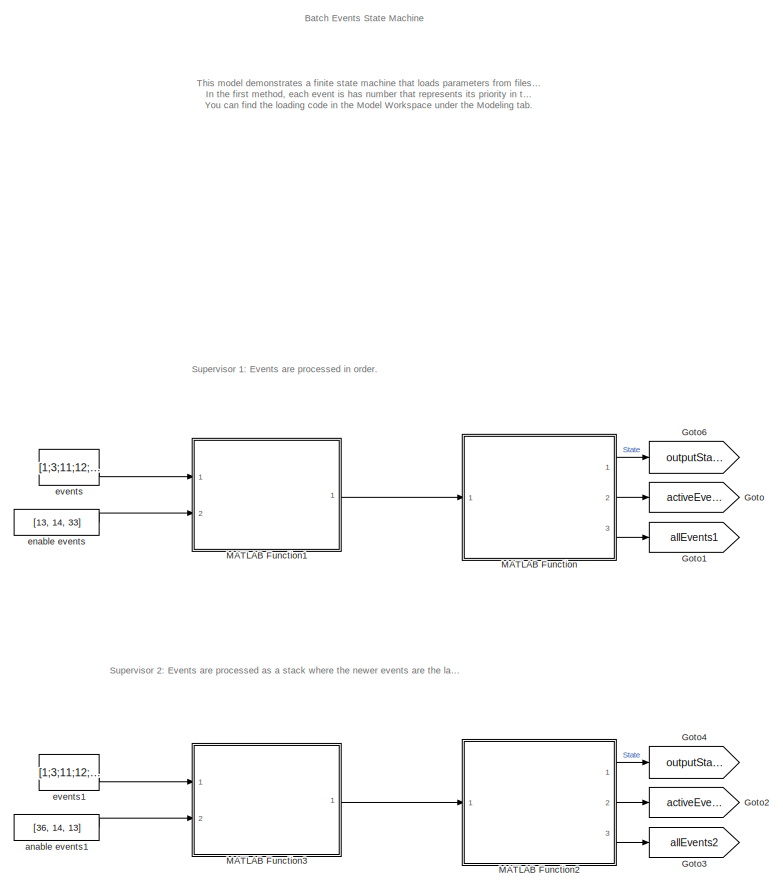
[diagram: root canvas - part 1/2, left side, full height]
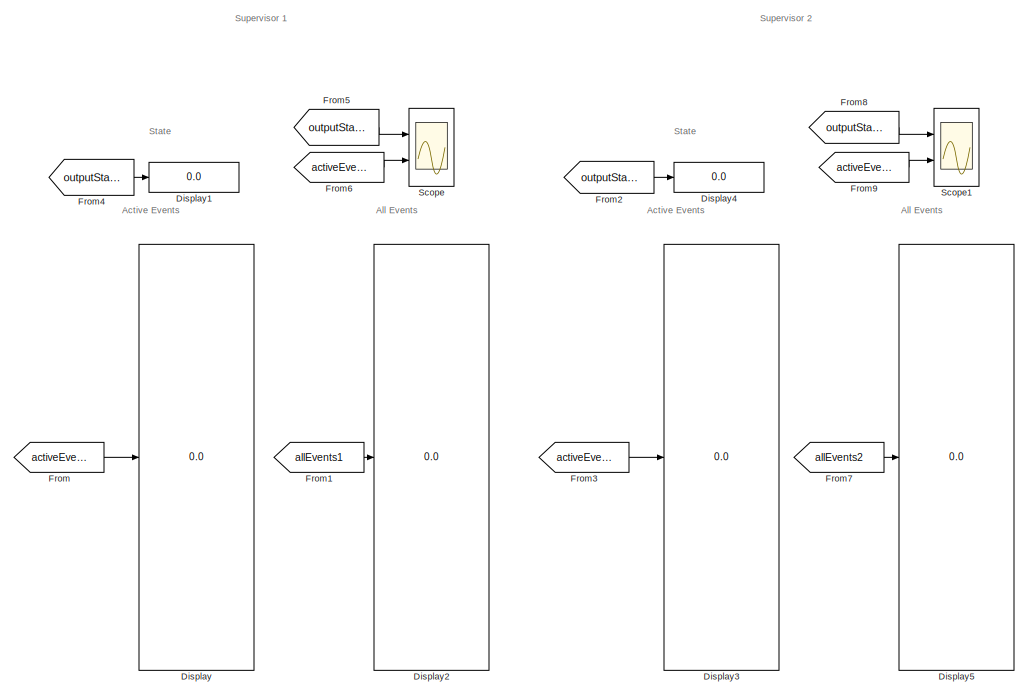
[diagram: root canvas - part 2/2, bottom right region]
MODEL slx_4e27941a263d
KIND model
CONFIG AbsTol = auto
CONFIG EnableMultiTasking = off
CONFIG FixedStep = auto
CONFIG MaxStep = auto
CONFIG MinStep = auto
CONFIG RelTol = 1e-3
CONFIG SampleTimeConstraint = Unconstrained
CONFIG SolverName = VariableStepAuto
CONFIG StartTime = 0.0
CONFIG StopTime = inf
WORKSPACE source: MATLAB code (in-file)
WORKSPACE code: addpath model
WORKSPACE code: addpath utils
WORKSPACE utils = StateMachineUtils
WORKSPACE utils = utils.loadEventsInAds('resources/tct/ALLEVENT.ADS')
WORKSPACE utils = utils.loadDisabledEventsInPdt('resources/tct/supervisor1/DATA_SIMSUP1_MG1.PDT')
WORKSPACE utils = utils.loadTransitionsInAds('resources/tct/supervisor1/SIMSUP1_MG1.ADS')
WORKSPACE encodedStates = StateEncoder.encode(utils.statesArray)
WORKSPACE transitions = utils.transitions
WORKSPACE allEvents = utils.eventsArray
BLOCK [Display] Display
  Decimation = 1
  Ports = [1]
BLOCK [Display] Display1
  Decimation = 1
  Ports = [1]
BLOCK [Display] Display2
  Decimation = 1
  Ports = [1]
BLOCK [Display] Display3
  Decimation = 1
  Ports = [1]
BLOCK [Display] Display4
  Decimation = 1
  Ports = [1]
BLOCK [Display] Display5
  Decimation = 1
  Ports = [1]
BLOCK [From] From
  GotoTag = activeEvents1
BLOCK [From] From1
  GotoTag = allEvents1
BLOCK [From] From2
  GotoTag = outputState2
BLOCK [From] From3
  GotoTag = activeEvents2
BLOCK [From] From4
  GotoTag = outputState1
BLOCK [From] From5
  GotoTag = outputState1
BLOCK [From] From6
  GotoTag = activeEvents1
BLOCK [From] From7
  GotoTag = allEvents2
BLOCK [From] From8
  GotoTag = outputState2
BLOCK [From] From9
  GotoTag = activeEvents2
BLOCK [Goto] Goto
  GotoTag = activeEvents1
BLOCK [Goto] Goto1
  GotoTag = allEvents1
BLOCK [Goto] Goto2
  GotoTag = activeEvents2
BLOCK [Goto] Goto3
  GotoTag = allEvents2
BLOCK [Goto] Goto4
  GotoTag = outputState2
BLOCK [Goto] Goto6
  GotoTag = outputState1
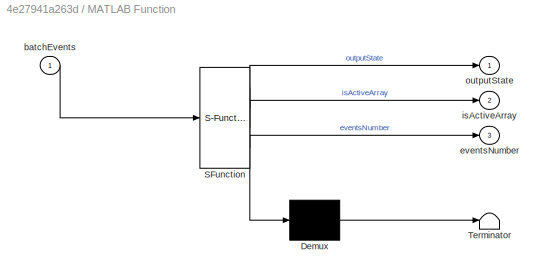
BLOCK [SubSystem] MATLAB Function
  ErrorFcn = Stateflow.Translate.translate
  PermitHierarchicalResolution = ExplicitOnly
  Ports = [1, 3]
  RequestExecContextInheritance = off
  SFBlockType = MATLAB Function
  TreatAsAtomicUnit = on
BLOCK [Demux] MATLAB Function/ Demux 
  Outputs = 1
  Ports = [1, 1]
BLOCK [S-Function] MATLAB Function/ SFunction 
  EnableBusSupport = on
  FunctionName = sf_sfun
  Parameters = allEvents,encodedStates,transitions
  PortCounts = [1 4]
  Ports = [1, 4]
  SFcnIsStateOwnerBlock = off
  SFunctionDeploymentMode = off
  Tag = Stateflow S-Function 2
BLOCK [Terminator] MATLAB Function/ Terminator 
BLOCK [Inport] MATLAB Function/batchEvents
BLOCK [Outport] MATLAB Function/eventsNumber
  Port = 3
BLOCK [Outport] MATLAB Function/isActiveArray
  Port = 2
BLOCK [Outport] MATLAB Function/outputState
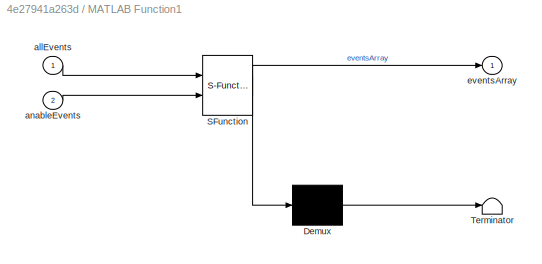
BLOCK [SubSystem] MATLAB Function1
  ErrorFcn = Stateflow.Translate.translate
  PermitHierarchicalResolution = ExplicitOnly
  Ports = [2, 1]
  RequestExecContextInheritance = off
  SFBlockType = MATLAB Function
  TreatAsAtomicUnit = on
BLOCK [Demux] MATLAB Function1/ Demux 
  Outputs = 1
  Ports = [1, 1]
BLOCK [S-Function] MATLAB Function1/ SFunction 
  EnableBusSupport = on
  FunctionName = sf_sfun
  PortCounts = [2 2]
  Ports = [2, 2]
  SFcnIsStateOwnerBlock = off
  SFunctionDeploymentMode = off
  Tag = Stateflow S-Function 1
BLOCK [Terminator] MATLAB Function1/ Terminator 
BLOCK [Inport] MATLAB Function1/allEvents
BLOCK [Inport] MATLAB Function1/anableEvents
  Port = 2
BLOCK [Outport] MATLAB Function1/eventsArray
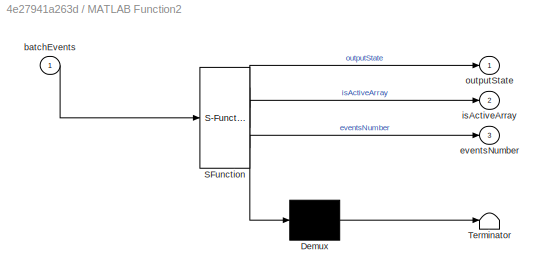
BLOCK [SubSystem] MATLAB Function2
  ErrorFcn = Stateflow.Translate.translate
  PermitHierarchicalResolution = ExplicitOnly
  Ports = [1, 3]
  RequestExecContextInheritance = off
  SFBlockType = MATLAB Function
  TreatAsAtomicUnit = on
BLOCK [Demux] MATLAB Function2/ Demux 
  Outputs = 1
  Ports = [1, 1]
BLOCK [S-Function] MATLAB Function2/ SFunction 
  EnableBusSupport = on
  FunctionName = sf_sfun
  Parameters = allEvents,encodedStates,transitions
  PortCounts = [1 4]
  Ports = [1, 4]
  SFcnIsStateOwnerBlock = off
  SFunctionDeploymentMode = off
  Tag = Stateflow S-Function 3
BLOCK [Terminator] MATLAB Function2/ Terminator 
BLOCK [Inport] MATLAB Function2/batchEvents
BLOCK [Outport] MATLAB Function2/eventsNumber
  Port = 3
BLOCK [Outport] MATLAB Function2/isActiveArray
  Port = 2
BLOCK [Outport] MATLAB Function2/outputState
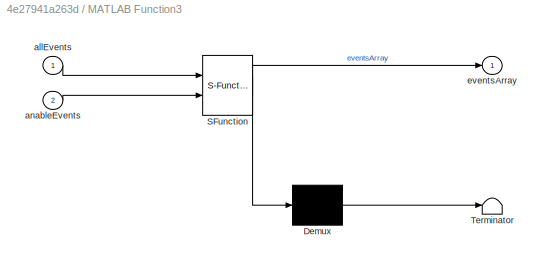
BLOCK [SubSystem] MATLAB Function3
  ErrorFcn = Stateflow.Translate.translate
  PermitHierarchicalResolution = ExplicitOnly
  Ports = [2, 1]
  RequestExecContextInheritance = off
  SFBlockType = MATLAB Function
  TreatAsAtomicUnit = on
BLOCK [Demux] MATLAB Function3/ Demux 
  Outputs = 1
  Ports = [1, 1]
BLOCK [S-Function] MATLAB Function3/ SFunction 
  EnableBusSupport = on
  FunctionName = sf_sfun
  PortCounts = [2 2]
  Ports = [2, 2]
  SFcnIsStateOwnerBlock = off
  SFunctionDeploymentMode = off
  Tag = Stateflow S-Function 4
BLOCK [Terminator] MATLAB Function3/ Terminator 
BLOCK [Inport] MATLAB Function3/allEvents
BLOCK [Inport] MATLAB Function3/anableEvents
  Port = 2
BLOCK [Outport] MATLAB Function3/eventsArray
BLOCK [Scope] Scope
  Floating = off
  NumInputPorts = 2
  Ports = [2]
  ScopeSpecificationString = Simulink.scopes.TimeScopeBlockCfg('CurrentConfiguration', extmgr.ConfigurationSet(extmgr.Configuration('Core','General UI',true),extmgr.Configuration('Core','Source UI',true),extmgr.Configuration('Sources','WiredSimulink',true),extmgr.Configuration('Visuals','Time Domain',true,'SerializedDisplays',{struct('MinYLimReal','-1.00000','MaxYLimReal','1.00000','YLabelReal','','MinYLimMag','0.00000','MaxY...<+2477ch>
BLOCK [Scope] Scope1
  Floating = off
  NumInputPorts = 2
  Ports = [2]
  ScopeSpecificationString = Simulink.scopes.TimeScopeBlockCfg('CurrentConfiguration', extmgr.ConfigurationSet(extmgr.Configuration('Core','General UI',true),extmgr.Configuration('Core','Source UI',true),extmgr.Configuration('Sources','WiredSimulink',true,'DataLoggingVariableName','ScopeData1'),extmgr.Configuration('Visuals','Time Domain',true,'SerializedDisplays',{struct('MinYLimReal','-1.00000','MaxYLimReal','1.00000','YLab...<+2516ch>
BLOCK [Constant] anable events1
  Value = [36, 14, 13]
BLOCK [Constant] enable events
  Value = [13, 14, 33]
BLOCK [Constant] events
  Value = [1;3;11;12;13;14;16;21;23;25;27;31;32;33;34;36;41;43;51;52;54;56;58;61;63]
BLOCK [Constant] events1
  Value = [1;3;11;12;13;14;16;21;23;25;27;31;32;33;34;36;41;43;51;52;54;56;58;61;63]
ANNOTATION (root): This model demonstrates a finite state machine that loads parameters from files and is capable of processing a batch of events at each time step. The objective is to showcase two methods for passing multiple events to the state machine within a single block: sorting the events or using the first-come-first-serve approach. In the first method, each event is has number that represents its priority i...<+357ch>
ANNOTATION (root): Batch Events State Machine
ANNOTATION (root): Active Events
ANNOTATION (root): All Events
ANNOTATION (root): State
ANNOTATION (root): Supervisor 1: Events are processed in order.
ANNOTATION (root): Supervisor 1
ANNOTATION (root): Supervisor 2: Events are processed as a stack where the newer events are the last.
ANNOTATION (root): Supervisor 2
LINE From1:1 -> Display2:1
LINE From2:1 -> Display4:1
LINE From3:1 -> Display3:1
LINE From4:1 -> Display1:1
LINE From5:1 -> Scope:1
LINE From6:1 -> Scope:2
LINE From7:1 -> Display5:1
LINE From8:1 -> Scope1:1
LINE From9:1 -> Scope1:2
LINE From:1 -> Display:1
LINE MATLAB Function1:1 -> MATLAB Function:1
LINE MATLAB Function2:1 -> Goto4:1
LINE MATLAB Function2:2 -> Goto2:1
LINE MATLAB Function2:3 -> Goto3:1
LINE MATLAB Function3:1 -> MATLAB Function2:1
LINE MATLAB Function:1 -> Goto6:1
LINE MATLAB Function:2 -> Goto:1
LINE MATLAB Function:3 -> Goto1:1
LINE anable events1:1 -> MATLAB Function3:2
LINE enable events:1 -> MATLAB Function1:2
LINE events1:1 -> MATLAB Function3:1
LINE events:1 -> MATLAB Function1:1
CHART MATLAB Function1 states=1 transitions=1
  STATE_LABEL 'eML_blk_kernel()'
  STATE_LABEL 'SCRIPT:\nfunction eventsArray = eventsGenerator(allEvents, anableEvents)\n\n[~, indexes] = ismember(anableEvents, allEvents);\n\neventsArray = zeros(length(allEvents), 1);\n\neventsArray(indexes) = 1;\n'
CHART MATLAB Function states=1 transitions=1
  STATE_LABEL 'eML_blk_kernel()'
  STATE_LABEL 'SCRIPT:\nfunction [outputState, isActiveArray, eventsNumber] = stateMachine( ...\n    batchEvents, ...\n    allEvents, ...\n    transitions, ...\n    encodedStates)\n% State Machine with parameters from files.\n% Receives a batch of events and process one event at time, starting with\n% the event of index 1.\n% batchEvents: array with 0s and 1s where 1 is the enabled event while 0,\n% is disabled event;\n% a...<+875ch>'
CHART MATLAB Function2 states=1 transitions=1
  STATE_LABEL 'eML_blk_kernel()'
  STATE_LABEL 'SCRIPT:\nfunction [outputState, isActiveArray, eventsNumber] = stateMachine2( ...\n    batchEvents, ...\n    allEvents, ...\n    transitions, ...\n    encodedStates)\n% State Machine with parameters from files.\n% Receives a batch of events and process one event at time, starting with\n% the event of index 1.\n% batchEvents: array with 0s and 1s where 1 is the enabled event while 0,\n% is disabled event;\n% ...<+1731ch>'
CHART MATLAB Function3 states=1 transitions=1
  STATE_LABEL 'eML_blk_kernel()'
  STATE_LABEL 'SCRIPT:\nfunction eventsArray = eventsGenerator(allEvents, anableEvents)\n\n[~, indexes] = ismember(anableEvents, allEvents);\n\neventsArray = zeros(length(allEvents), 1);\n\neventsArray(indexes) = 1;\n'
CHART  states=0 transitions=0
CHART  states=0 transitions=0
CHART  states=0 transitions=0
CHART  states=0 transitions=0
